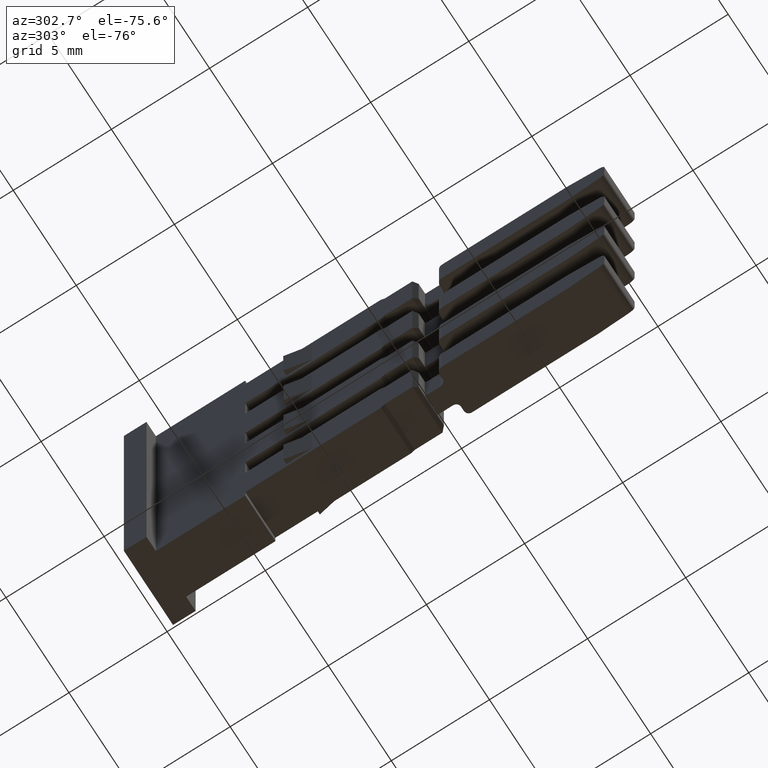
[diagram: clean part render]
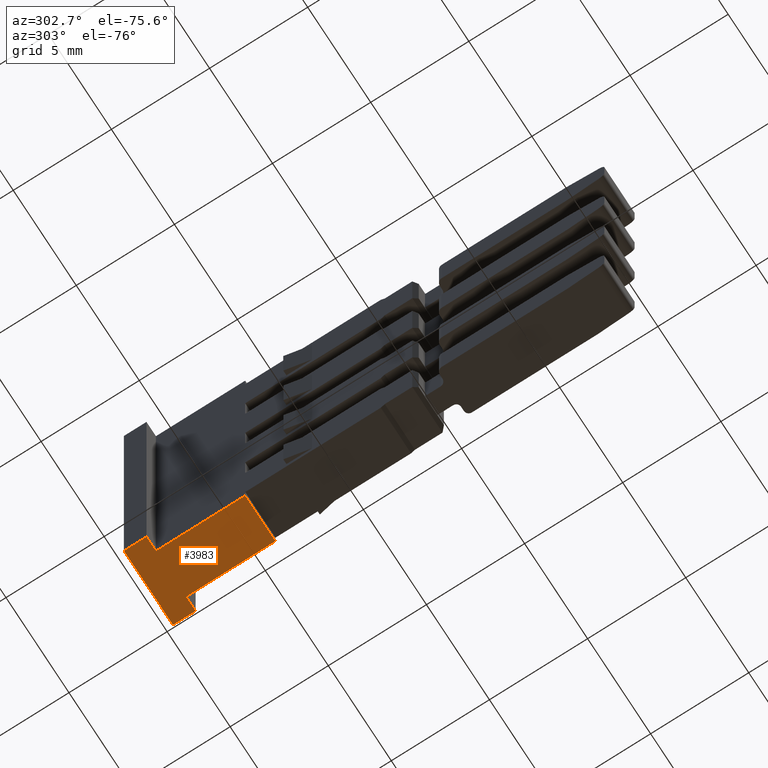
[diagram: same view with one face highlighted and labeled with its STEP entity id]
A machine part, auxiliary view. The second image highlights one B-rep face of the part: STEP entity #3983.
In plain terms, the highlighted planar face has unit normal (0, -0, -1).
Its self-contained STEP definition (entity closure, byte-faithful):
#150 = VERTEX_POINT ( 'NONE', #4775 ) ;
#163 = VERTEX_POINT ( 'NONE', #4805 ) ;
#219 = VERTEX_POINT ( 'NONE', #4848 ) ;
#231 = VERTEX_POINT ( 'NONE', #4852 ) ;
#245 = VERTEX_POINT ( 'NONE', #4902 ) ;
#252 = VERTEX_POINT ( 'NONE', #4929 ) ;
#253 = VERTEX_POINT ( 'NONE', #4899 ) ;
#296 = VERTEX_POINT ( 'NONE', #4913 ) ;
#667 = EDGE_LOOP ( 'NONE', ( #4235, #4252, #4213, #4238, #4208, #4248, #4226, #4234 ) ) ;
#744 = VECTOR ( 'NONE', #5088, 1000.000000000000000 ) ;
#839 = VECTOR ( 'NONE', #2532, 1000.000000000000000 ) ;
#884 = VECTOR ( 'NONE', #2722, 1000.000000000000000 ) ;
#890 = VECTOR ( 'NONE', #2803, 1000.000000000000000 ) ;
#914 = VECTOR ( 'NONE', #2759, 1000.000000000000000 ) ;
#920 = VECTOR ( 'NONE', #2660, 1000.000000000000000 ) ;
#947 = VECTOR ( 'NONE', #2848, 1000.000000000000000 ) ;
#958 = VECTOR ( 'NONE', #2852, 1000.000000000000000 ) ;
#1299 = AXIS2_PLACEMENT_3D ( 'NONE', #1530, #1539, #1547 ) ;
#1530 = CARTESIAN_POINT ( 'NONE',  ( 1459.739907072214200, 986.8426795374829200, 13.05000000017584000 ) ) ;
#1539 = DIRECTION ( 'NONE',  ( 3.430248998885680200E-015, -2.711969594887275000E-029, -1.000000000000000000 ) ) ;
#1541 = PLANE ( 'NONE',  #1299 ) ;
#1547 = DIRECTION ( 'NONE',  ( -1.000000000000000000, 0.0000000000000000000, -3.430248998885680200E-015 ) ) ;
#1562 = FACE_OUTER_BOUND ( 'NONE', #667, .T. ) ;
#2505 = LINE ( 'NONE', #2507, #839 ) ;
#2507 = CARTESIAN_POINT ( 'NONE',  ( 1459.739907072214200, 989.6926795374925000, 13.05000000017584000 ) ) ;
#2532 = DIRECTION ( 'NONE',  ( 1.000000000000000000, -0.0000000000000000000, 3.430248998885680200E-015 ) ) ;
#2569 = LINE ( 'NONE', #2580, #884 ) ;
#2580 = CARTESIAN_POINT ( 'NONE',  ( 1459.739907072214200, 988.5426795374916100, 13.05000000017584000 ) ) ;
#2650 = LINE ( 'NONE', #2689, #920 ) ;
#2660 = DIRECTION ( 'NONE',  ( -9.302730987870479400E-044, -1.000000000000000000, 2.711969594887275000E-029 ) ) ;
#2689 = CARTESIAN_POINT ( 'NONE',  ( 1459.239907072214000, 986.8426795374829200, 13.05000000017583900 ) ) ;
#2712 = LINE ( 'NONE', #2771, #914 ) ;
#2722 = DIRECTION ( 'NONE',  ( -1.000000000000000000, 0.0000000000000000000, -3.430248998885680200E-015 ) ) ;
#2745 = LINE ( 'NONE', #2784, #890 ) ;
#2759 = DIRECTION ( 'NONE',  ( -1.000000000000000000, 0.0000000000000000000, -3.430248998885680200E-015 ) ) ;
#2771 = CARTESIAN_POINT ( 'NONE',  ( 1459.739907072214200, 983.9946795374845600, 13.05000000017584000 ) ) ;
#2784 = CARTESIAN_POINT ( 'NONE',  ( 1456.089907072214600, 989.6926795374930600, 13.05000000017582800 ) ) ;
#2803 = DIRECTION ( 'NONE',  ( 6.401193638283130500E-015, -1.000000000000000000, 0.0000000000000000000 ) ) ;
#2848 = DIRECTION ( 'NONE',  ( -1.000000000000000000, -0.0000000000000000000, 0.0000000000000000000 ) ) ;
#2852 = DIRECTION ( 'NONE',  ( 6.401193638283130500E-015, 1.000000000000000000, 0.0000000000000000000 ) ) ;
#2860 = CARTESIAN_POINT ( 'NONE',  ( 1459.886317917991800, 988.5426795374916100, 13.05000000017584000 ) ) ;
#2862 = LINE ( 'NONE', #2863, #958 ) ;
#2863 = CARTESIAN_POINT ( 'NONE',  ( 1459.989907072214500, 989.6926795374930600, 13.05000000017584000 ) ) ;
#2887 = LINE ( 'NONE', #2860, #947 ) ;
#3461 = EDGE_CURVE ( 'NONE', #150, #163, #5121, .T. ) ;
#3605 = EDGE_CURVE ( 'NONE', #219, #231, #2505, .T. ) ;
#3628 = EDGE_CURVE ( 'NONE', #150, #296, #2569, .T. ) ;
#3633 = EDGE_CURVE ( 'NONE', #245, #252, #2650, .T. ) ;
#3649 = EDGE_CURVE ( 'NONE', #252, #163, #2712, .T. ) ;
#3654 = EDGE_CURVE ( 'NONE', #219, #296, #2745, .T. ) ;
#3677 = EDGE_CURVE ( 'NONE', #253, #245, #2887, .T. ) ;
#3679 = EDGE_CURVE ( 'NONE', #253, #231, #2862, .T. ) ;
#3983 = ADVANCED_FACE ( 'NONE', ( #1562 ), #1541, .T. ) ;
#4208 = ORIENTED_EDGE ( 'NONE', *, *, #3633, .T. ) ;
#4213 = ORIENTED_EDGE ( 'NONE', *, *, #3679, .F. ) ;
#4226 = ORIENTED_EDGE ( 'NONE', *, *, #3461, .F. ) ;
#4234 = ORIENTED_EDGE ( 'NONE', *, *, #3628, .T. ) ;
#4235 = ORIENTED_EDGE ( 'NONE', *, *, #3654, .F. ) ;
#4238 = ORIENTED_EDGE ( 'NONE', *, *, #3677, .T. ) ;
#4248 = ORIENTED_EDGE ( 'NONE', *, *, #3649, .T. ) ;
#4252 = ORIENTED_EDGE ( 'NONE', *, *, #3605, .T. ) ;
#4775 = CARTESIAN_POINT ( 'NONE',  ( 1456.839907072213900, 988.5426795374916100, 13.05000000017583000 ) ) ;
#4805 = CARTESIAN_POINT ( 'NONE',  ( 1456.839907072213900, 983.9946795374828500, 13.05000000017583000 ) ) ;
#4848 = CARTESIAN_POINT ( 'NONE',  ( 1456.089907072214600, 989.6926795374923800, 13.05000000017583000 ) ) ;
#4852 = CARTESIAN_POINT ( 'NONE',  ( 1459.989907072214500, 989.6926795374926100, 13.05000000017584000 ) ) ;
#4899 = CARTESIAN_POINT ( 'NONE',  ( 1459.989907072214500, 988.5426795374914900, 13.05000000017584000 ) ) ;
#4902 = CARTESIAN_POINT ( 'NONE',  ( 1459.239907072214000, 988.5426795374916100, 13.05000000017584000 ) ) ;
#4913 = CARTESIAN_POINT ( 'NONE',  ( 1456.089907072214600, 988.5426795374916100, 13.05000000017582800 ) ) ;
#4929 = CARTESIAN_POINT ( 'NONE',  ( 1459.239907072214000, 983.9946795374847900, 13.05000000017583700 ) ) ;
#5088 = DIRECTION ( 'NONE',  ( 6.401193638283130500E-015, -1.000000000000000000, 0.0000000000000000000 ) ) ;
#5097 = CARTESIAN_POINT ( 'NONE',  ( 1456.839907072213900, 986.0926795374931500, 13.05000000017582800 ) ) ;
#5121 = LINE ( 'NONE', #5097, #744 ) ;